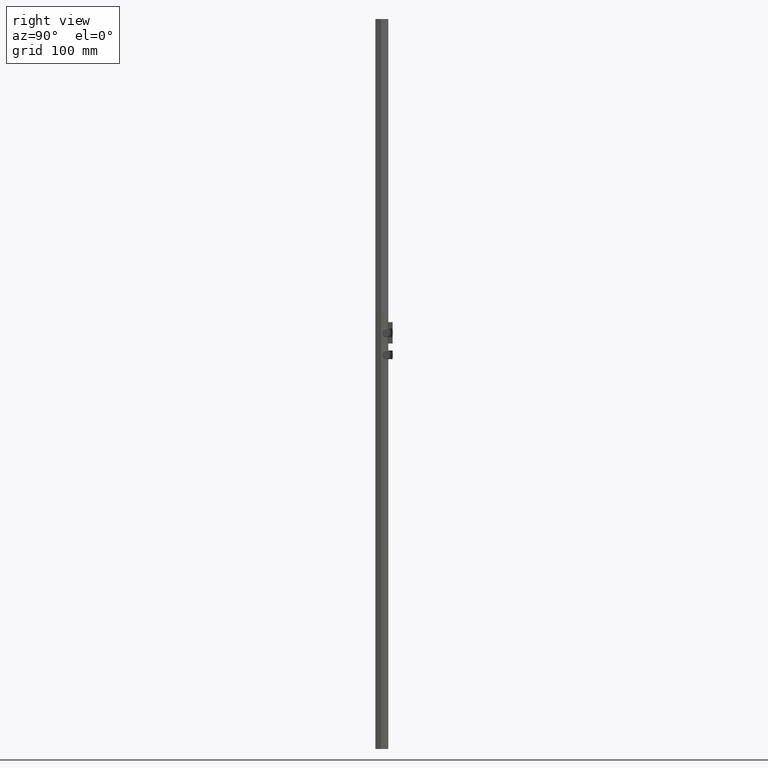
[diagram: clean part render]
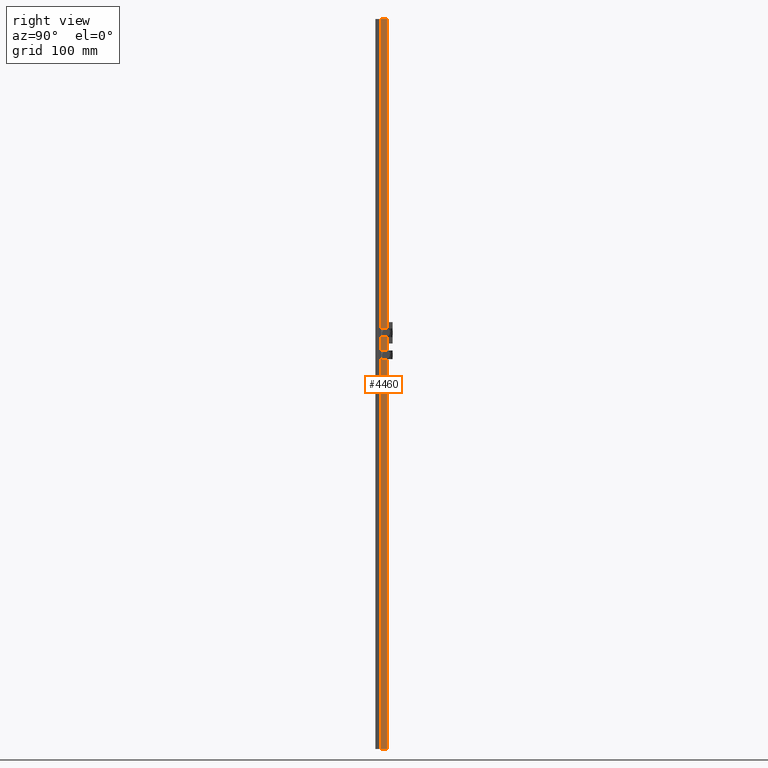
[diagram: same view with one face highlighted and labeled with its STEP entity id]
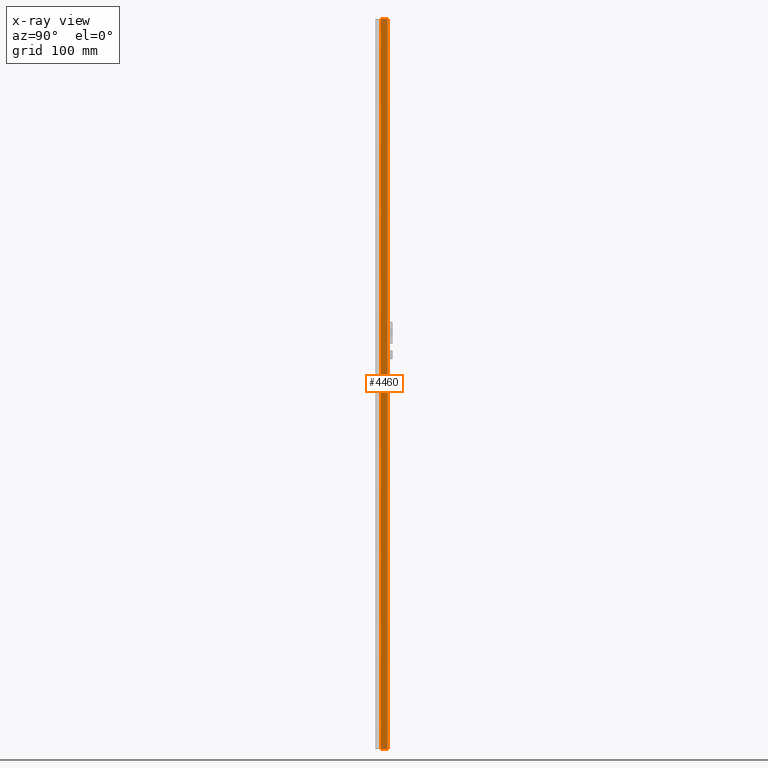
[diagram: x-ray of the same camera — body ghosted, the highlighted face saturated]
A machine part, right view. The second image highlights one B-rep face of the part: STEP entity #4460.
The next image is the same camera in x-ray: the body ghosted, the highlighted face saturated — about 0% of this face is hidden behind the body in this view.
In plain terms, the highlighted planar face has unit normal (-0.866, 0.5, 0).
Its self-contained STEP definition (entity closure, byte-faithful):
#552 = LINE ( 'NONE', #3944, #2918 ) ;
#581 = VERTEX_POINT ( 'NONE', #1672 ) ;
#616 = AXIS2_PLACEMENT_3D ( 'NONE', #7477, #3604, #6867 ) ;
#713 = VECTOR ( 'NONE', #6198, 1000.000000000000000 ) ;
#826 = LINE ( 'NONE', #3505, #713 ) ;
#1019 = ORIENTED_EDGE ( 'NONE', *, *, #6830, .T. ) ;
#1074 = EDGE_CURVE ( 'NONE', #581, #1854, #552, .T. ) ;
#1215 = CARTESIAN_POINT ( 'NONE',  ( 10.59252271188812777, 425.0000000000000000, -2.594419806801887381E-15 ) ) ;
#1470 = DIRECTION ( 'NONE',  ( -0.000000000000000000, -1.000000000000000000, -0.000000000000000000 ) ) ;
#1631 = EDGE_CURVE ( 'NONE', #8446, #581, #2125, .T. ) ;
#1672 = CARTESIAN_POINT ( 'NONE',  ( 10.59252271188812777, -425.0000000000000000, -2.594419806801887381E-15 ) ) ;
#1854 = VERTEX_POINT ( 'NONE', #4754 ) ;
#2125 = LINE ( 'NONE', #6877, #7968 ) ;
#2899 = FACE_OUTER_BOUND ( 'NONE', #3886, .T. ) ;
#2918 = VECTOR ( 'NONE', #6641, 1000.000000000000114 ) ;
#3505 = CARTESIAN_POINT ( 'NONE',  ( 14.99999999999999822, 425.0000000000000000, -7.633974596215571395 ) ) ;
#3604 = DIRECTION ( 'NONE',  ( -0.8660254037844363761, 0.000000000000000000, -0.5000000000000038858 ) ) ;
#3664 = VERTEX_POINT ( 'NONE', #4869 ) ;
#3886 = EDGE_LOOP ( 'NONE', ( #7642, #1019, #6092, #7378 ) ) ;
#3944 = CARTESIAN_POINT ( 'NONE',  ( 10.59252271188812777, -425.0000000000000000, -2.594419806801887381E-15 ) ) ;
#4460 = ADVANCED_FACE ( 'NONE', ( #2899 ), #8261, .F. ) ;
#4754 = CARTESIAN_POINT ( 'NONE',  ( 15.00000000000000000, -425.0000000000000000, -7.633974596215576724 ) ) ;
#4869 = CARTESIAN_POINT ( 'NONE',  ( 14.99999999999999822, 425.0000000000000000, -7.633974596215576724 ) ) ;
#5173 = LINE ( 'NONE', #7902, #6074 ) ;
#6074 = VECTOR ( 'NONE', #7761, 1000.000000000000114 ) ;
#6092 = ORIENTED_EDGE ( 'NONE', *, *, #8132, .F. ) ;
#6198 = DIRECTION ( 'NONE',  ( 0.000000000000000000, 1.000000000000000000, 0.000000000000000000 ) ) ;
#6641 = DIRECTION ( 'NONE',  ( 0.5000000000000038858, 0.000000000000000000, -0.8660254037844363761 ) ) ;
#6830 = EDGE_CURVE ( 'NONE', #1854, #3664, #826, .T. ) ;
#6867 = DIRECTION ( 'NONE',  ( -0.5000000000000038858, 0.000000000000000000, 0.8660254037844363761 ) ) ;
#6877 = CARTESIAN_POINT ( 'NONE',  ( 10.59252271188812777, 425.0000000000000000, -2.594419806801887381E-15 ) ) ;
#7378 = ORIENTED_EDGE ( 'NONE', *, *, #1631, .T. ) ;
#7477 = CARTESIAN_POINT ( 'NONE',  ( 10.59252271188812777, 425.0000000000000000, -2.594419806801887381E-15 ) ) ;
#7642 = ORIENTED_EDGE ( 'NONE', *, *, #1074, .T. ) ;
#7761 = DIRECTION ( 'NONE',  ( 0.5000000000000038858, 0.000000000000000000, -0.8660254037844363761 ) ) ;
#7902 = CARTESIAN_POINT ( 'NONE',  ( 10.59252271188812777, 425.0000000000000000, -2.594419806801887381E-15 ) ) ;
#7968 = VECTOR ( 'NONE', #1470, 1000.000000000000000 ) ;
#8132 = EDGE_CURVE ( 'NONE', #8446, #3664, #5173, .T. ) ;
#8261 = PLANE ( 'NONE',  #616 ) ;
#8446 = VERTEX_POINT ( 'NONE', #1215 ) ;